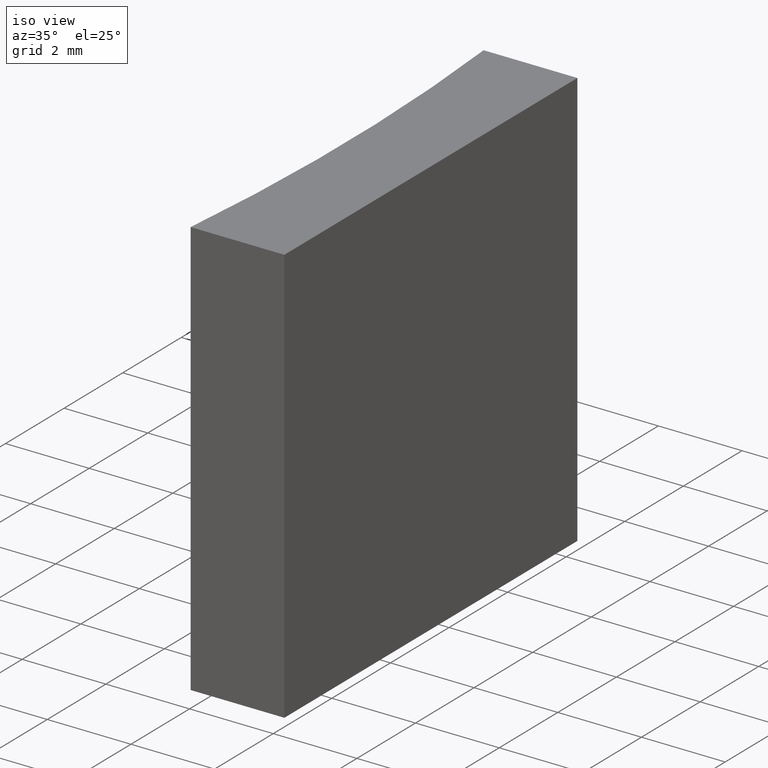
[diagram: clean part render]
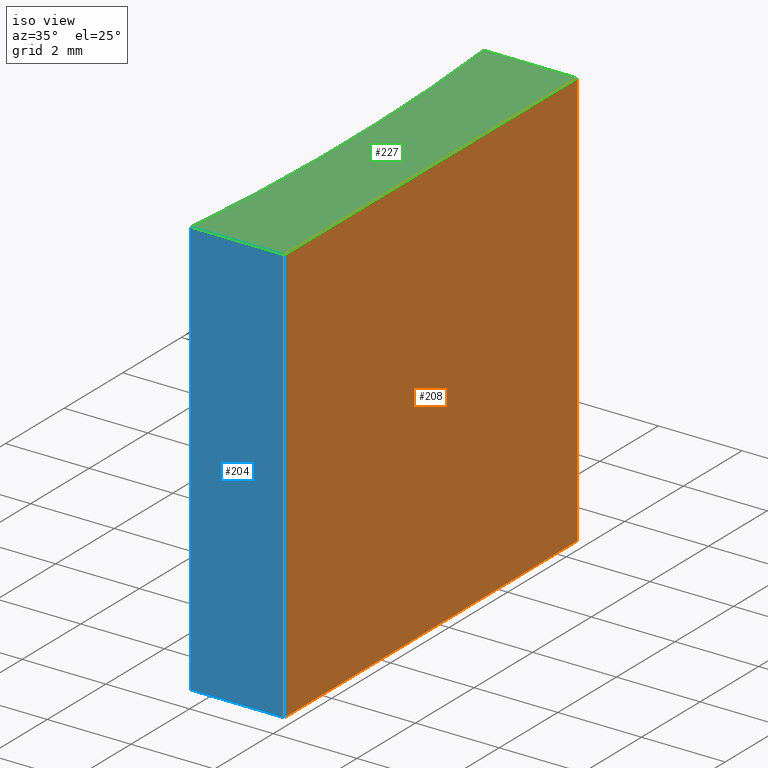
[diagram: same view with three faces highlighted in distinct colors, each labeled with its STEP entity id]
A machine part, iso view with three faces highlighted in distinct colors.
Their STEP definitions:

[orange] entity #208 — the highlighted planar face has unit normal (-1, -0, 0).
#6 = CARTESIAN_POINT ( 'NONE',  ( 22.02284995870106954, -9.651690268478267498, 10.00000000000000000 ) ) ;
#11 = CARTESIAN_POINT ( 'NONE',  ( 22.02284995870107309, -19.65169026847826927, 10.00000000000000000 ) ) ;
#16 = ORIENTED_EDGE ( 'NONE', *, *, #239, .F. ) ;
#27 = VECTOR ( 'NONE', #82, 1000.000000000000000 ) ;
#28 = DIRECTION ( 'NONE',  ( -3.469446951953613696E-16, 1.000000000000000000, -0.000000000000000000 ) ) ;
#39 = EDGE_CURVE ( 'NONE', #102, #157, #135, .T. ) ;
#51 = LINE ( 'NONE', #64, #178 ) ;
#64 = CARTESIAN_POINT ( 'NONE',  ( 22.02284995870106954, -9.651690268478267498, 10.00000000000000000 ) ) ;
#72 = VERTEX_POINT ( 'NONE', #117 ) ;
#82 = DIRECTION ( 'NONE',  ( -0.000000000000000000, -0.000000000000000000, -1.000000000000000000 ) ) ;
#95 = ORIENTED_EDGE ( 'NONE', *, *, #39, .T. ) ;
#101 = CARTESIAN_POINT ( 'NONE',  ( 22.02284995870106954, -9.651690268478267498, 0.000000000000000000 ) ) ;
#102 = VERTEX_POINT ( 'NONE', #187 ) ;
#114 = CARTESIAN_POINT ( 'NONE',  ( 22.02284995870106954, -9.651690268478267498, 0.000000000000000000 ) ) ;
#117 = CARTESIAN_POINT ( 'NONE',  ( 22.02284995870106954, -9.651690268478267498, 10.00000000000000000 ) ) ;
#118 = ORIENTED_EDGE ( 'NONE', *, *, #173, .T. ) ;
#125 = DIRECTION ( 'NONE',  ( -1.000000000000000000, -3.469446951953613696E-16, 0.000000000000000000 ) ) ;
#128 = PLANE ( 'NONE',  #171 ) ;
#130 = VERTEX_POINT ( 'NONE', #11 ) ;
#132 = VECTOR ( 'NONE', #136, 1000.000000000000000 ) ;
#134 = FACE_OUTER_BOUND ( 'NONE', #214, .T. ) ;
#135 = LINE ( 'NONE', #114, #132 ) ;
#136 = DIRECTION ( 'NONE',  ( -3.469446951953613696E-16, 1.000000000000000000, -0.000000000000000000 ) ) ;
#144 = VECTOR ( 'NONE', #225, 1000.000000000000000 ) ;
#150 = DIRECTION ( 'NONE',  ( 3.469446951953613696E-16, -1.000000000000000000, 0.000000000000000000 ) ) ;
#154 = LINE ( 'NONE', #211, #144 ) ;
#157 = VERTEX_POINT ( 'NONE', #101 ) ;
#171 = AXIS2_PLACEMENT_3D ( 'NONE', #6, #125, #150 ) ;
#173 = EDGE_CURVE ( 'NONE', #130, #102, #188, .T. ) ;
#174 = CARTESIAN_POINT ( 'NONE',  ( 22.02284995870107309, -19.65169026847826927, 10.00000000000000000 ) ) ;
#178 = VECTOR ( 'NONE', #28, 1000.000000000000000 ) ;
#187 = CARTESIAN_POINT ( 'NONE',  ( 22.02284995870107309, -19.65169026847826927, 0.000000000000000000 ) ) ;
#188 = LINE ( 'NONE', #174, #27 ) ;
#189 = EDGE_CURVE ( 'NONE', #72, #157, #154, .T. ) ;
#208 = ADVANCED_FACE ( 'NONE', ( #134 ), #128, .F. ) ;
#211 = CARTESIAN_POINT ( 'NONE',  ( 22.02284995870106954, -9.651690268478267498, 10.00000000000000000 ) ) ;
#214 = EDGE_LOOP ( 'NONE', ( #95, #232, #16, #118 ) ) ;
#225 = DIRECTION ( 'NONE',  ( -0.000000000000000000, -0.000000000000000000, -1.000000000000000000 ) ) ;
#232 = ORIENTED_EDGE ( 'NONE', *, *, #189, .F. ) ;
#239 = EDGE_CURVE ( 'NONE', #130, #72, #51, .T. ) ;

[blue] entity #204 — the highlighted planar face has unit normal (0, 1, 0).
#2 = VECTOR ( 'NONE', #176, 1000.000000000000000 ) ;
#5 = FACE_OUTER_BOUND ( 'NONE', #201, .T. ) ;
#11 = CARTESIAN_POINT ( 'NONE',  ( 22.02284995870107309, -19.65169026847826927, 10.00000000000000000 ) ) ;
#15 = EDGE_CURVE ( 'NONE', #230, #133, #196, .T. ) ;
#24 = PLANE ( 'NONE',  #49 ) ;
#25 = DIRECTION ( 'NONE',  ( 0.000000000000000000, 1.000000000000000000, 0.000000000000000000 ) ) ;
#27 = VECTOR ( 'NONE', #82, 1000.000000000000000 ) ;
#38 = CARTESIAN_POINT ( 'NONE',  ( 19.78284995870107466, -19.65169026847826927, 10.00000000000000000 ) ) ;
#40 = ORIENTED_EDGE ( 'NONE', *, *, #99, .T. ) ;
#45 = CARTESIAN_POINT ( 'NONE',  ( 19.78284995870107466, -19.65169026847826927, 10.00000000000000000 ) ) ;
#49 = AXIS2_PLACEMENT_3D ( 'NONE', #45, #25, #221 ) ;
#56 = DIRECTION ( 'NONE',  ( 1.000000000000000000, 0.000000000000000000, 0.000000000000000000 ) ) ;
#66 = CARTESIAN_POINT ( 'NONE',  ( 19.78284995870107466, -19.65169026847826927, 10.00000000000000000 ) ) ;
#82 = DIRECTION ( 'NONE',  ( -0.000000000000000000, -0.000000000000000000, -1.000000000000000000 ) ) ;
#83 = CARTESIAN_POINT ( 'NONE',  ( 19.78284995870107466, -19.65169026847826927, 0.000000000000000000 ) ) ;
#97 = CARTESIAN_POINT ( 'NONE',  ( 19.78284995870107466, -19.65169026847826927, 10.00000000000000000 ) ) ;
#99 = EDGE_CURVE ( 'NONE', #133, #102, #153, .T. ) ;
#102 = VERTEX_POINT ( 'NONE', #187 ) ;
#110 = VECTOR ( 'NONE', #113, 1000.000000000000000 ) ;
#113 = DIRECTION ( 'NONE',  ( 1.000000000000000000, 0.000000000000000000, 0.000000000000000000 ) ) ;
#116 = CARTESIAN_POINT ( 'NONE',  ( 19.78284995870107466, -19.65169026847826927, 0.000000000000000000 ) ) ;
#130 = VERTEX_POINT ( 'NONE', #11 ) ;
#133 = VERTEX_POINT ( 'NONE', #116 ) ;
#152 = LINE ( 'NONE', #66, #110 ) ;
#153 = LINE ( 'NONE', #83, #202 ) ;
#173 = EDGE_CURVE ( 'NONE', #130, #102, #188, .T. ) ;
#174 = CARTESIAN_POINT ( 'NONE',  ( 22.02284995870107309, -19.65169026847826927, 10.00000000000000000 ) ) ;
#176 = DIRECTION ( 'NONE',  ( -0.000000000000000000, -0.000000000000000000, -1.000000000000000000 ) ) ;
#181 = EDGE_CURVE ( 'NONE', #230, #130, #152, .T. ) ;
#187 = CARTESIAN_POINT ( 'NONE',  ( 22.02284995870107309, -19.65169026847826927, 0.000000000000000000 ) ) ;
#188 = LINE ( 'NONE', #174, #27 ) ;
#192 = ORIENTED_EDGE ( 'NONE', *, *, #181, .F. ) ;
#196 = LINE ( 'NONE', #38, #2 ) ;
#198 = ORIENTED_EDGE ( 'NONE', *, *, #173, .F. ) ;
#201 = EDGE_LOOP ( 'NONE', ( #40, #198, #192, #216 ) ) ;
#202 = VECTOR ( 'NONE', #56, 1000.000000000000000 ) ;
#204 = ADVANCED_FACE ( 'NONE', ( #5 ), #24, .F. ) ;
#216 = ORIENTED_EDGE ( 'NONE', *, *, #15, .T. ) ;
#221 = DIRECTION ( 'NONE',  ( 0.000000000000000000, -0.000000000000000000, 1.000000000000000000 ) ) ;
#230 = VERTEX_POINT ( 'NONE', #97 ) ;

[green] entity #227 — the highlighted planar face has unit normal (0, 0, 1).
#8 = DIRECTION ( 'NONE',  ( 1.000000000000000000, 0.000000000000000000, 0.000000000000000000 ) ) ;
#11 = CARTESIAN_POINT ( 'NONE',  ( 22.02284995870107309, -19.65169026847826927, 10.00000000000000000 ) ) ;
#28 = DIRECTION ( 'NONE',  ( -3.469446951953613696E-16, 1.000000000000000000, -0.000000000000000000 ) ) ;
#50 = ORIENTED_EDGE ( 'NONE', *, *, #166, .T. ) ;
#51 = LINE ( 'NONE', #64, #178 ) ;
#53 = CARTESIAN_POINT ( 'NONE',  ( 19.78284995870107466, -9.651690268478269275, 10.00000000000000000 ) ) ;
#54 = AXIS2_PLACEMENT_3D ( 'NONE', #147, #78, #145 ) ;
#55 = DIRECTION ( 'NONE',  ( -0.000000000000000000, -0.000000000000000000, -1.000000000000000000 ) ) ;
#59 = EDGE_LOOP ( 'NONE', ( #50, #73, #105, #120 ) ) ;
#64 = CARTESIAN_POINT ( 'NONE',  ( 22.02284995870106954, -9.651690268478267498, 10.00000000000000000 ) ) ;
#66 = CARTESIAN_POINT ( 'NONE',  ( 19.78284995870107466, -19.65169026847826927, 10.00000000000000000 ) ) ;
#68 = CARTESIAN_POINT ( 'NONE',  ( 19.78284995870107466, -9.651690268478269275, 10.00000000000000000 ) ) ;
#69 = LINE ( 'NONE', #68, #156 ) ;
#72 = VERTEX_POINT ( 'NONE', #117 ) ;
#73 = ORIENTED_EDGE ( 'NONE', *, *, #181, .T. ) ;
#78 = DIRECTION ( 'NONE',  ( 0.000000000000000000, 0.000000000000000000, 1.000000000000000000 ) ) ;
#97 = CARTESIAN_POINT ( 'NONE',  ( 19.78284995870107466, -19.65169026847826927, 10.00000000000000000 ) ) ;
#105 = ORIENTED_EDGE ( 'NONE', *, *, #239, .T. ) ;
#110 = VECTOR ( 'NONE', #113, 1000.000000000000000 ) ;
#113 = DIRECTION ( 'NONE',  ( 1.000000000000000000, 0.000000000000000000, 0.000000000000000000 ) ) ;
#117 = CARTESIAN_POINT ( 'NONE',  ( 22.02284995870106954, -9.651690268478267498, 10.00000000000000000 ) ) ;
#120 = ORIENTED_EDGE ( 'NONE', *, *, #165, .T. ) ;
#130 = VERTEX_POINT ( 'NONE', #11 ) ;
#140 = VERTEX_POINT ( 'NONE', #53 ) ;
#145 = DIRECTION ( 'NONE',  ( 1.000000000000000000, 0.000000000000000000, -0.000000000000000000 ) ) ;
#147 = CARTESIAN_POINT ( 'NONE',  ( -31.61451962379798530, -14.65169026847826927, 10.00000000000000000 ) ) ;
#151 = CIRCLE ( 'NONE', #175, 51.64000000000000057 ) ;
#152 = LINE ( 'NONE', #66, #110 ) ;
#156 = VECTOR ( 'NONE', #226, 1000.000000000000000 ) ;
#165 = EDGE_CURVE ( 'NONE', #72, #140, #69, .T. ) ;
#166 = EDGE_CURVE ( 'NONE', #140, #230, #151, .T. ) ;
#175 = AXIS2_PLACEMENT_3D ( 'NONE', #209, #55, #8 ) ;
#178 = VECTOR ( 'NONE', #28, 1000.000000000000000 ) ;
#181 = EDGE_CURVE ( 'NONE', #230, #130, #152, .T. ) ;
#203 = FACE_OUTER_BOUND ( 'NONE', #59, .T. ) ;
#205 = PLANE ( 'NONE',  #54 ) ;
#209 = CARTESIAN_POINT ( 'NONE',  ( -31.61451962379798530, -14.65169026847826927, 10.00000000000000000 ) ) ;
#226 = DIRECTION ( 'NONE',  ( -1.000000000000000000, -7.744301232039333445E-16, -0.000000000000000000 ) ) ;
#227 = ADVANCED_FACE ( 'NONE', ( #203 ), #205, .T. ) ;
#230 = VERTEX_POINT ( 'NONE', #97 ) ;
#239 = EDGE_CURVE ( 'NONE', #130, #72, #51, .T. ) ;